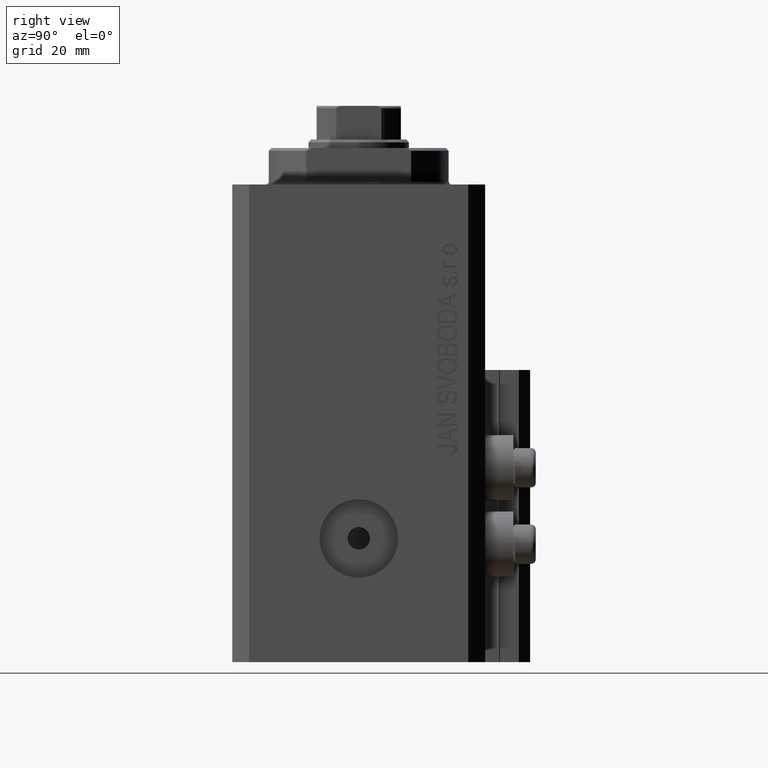
[diagram: clean part render]
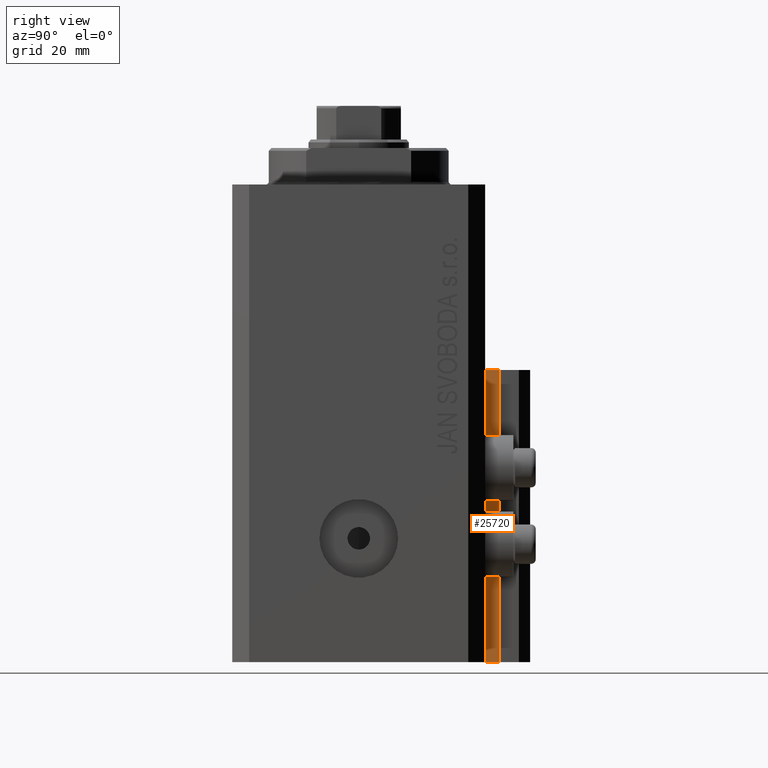
[diagram: same view with one face highlighted and labeled with its STEP entity id]
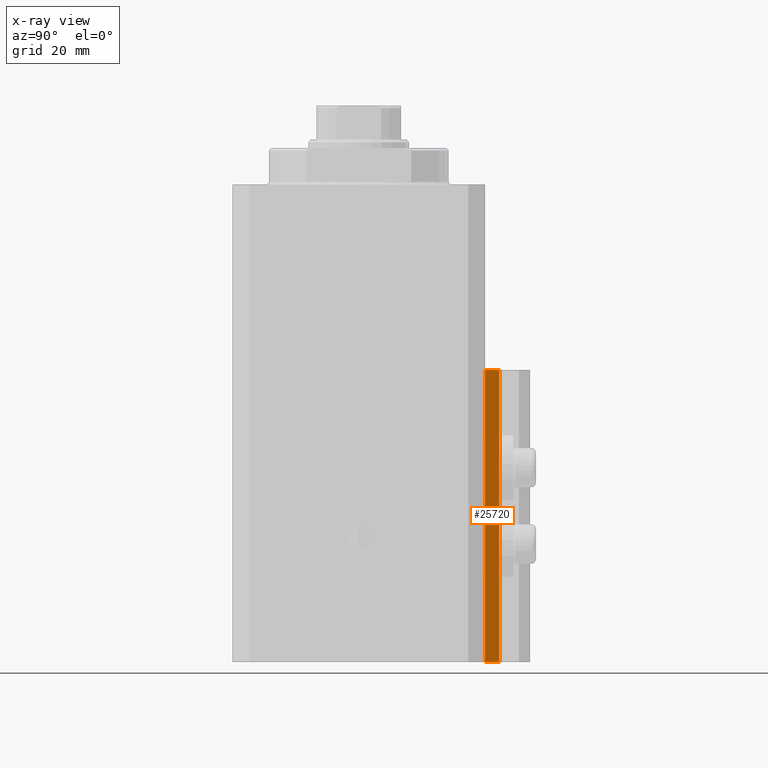
[diagram: x-ray of the same camera — body ghosted, the highlighted face saturated]
A machine part, right view. The second image highlights one B-rep face of the part: STEP entity #25720.
The next image is the same camera in x-ray: the body ghosted, the highlighted face saturated — about 0% of this face is hidden behind the body in this view.
In plain terms, the highlighted planar face has unit normal (1, -0, 0).
Its self-contained STEP definition (entity closure, byte-faithful):
#1549 = EDGE_CURVE ( 'NONE', #12872, #11153, #39842, .T. ) ;
#2373 = AXIS2_PLACEMENT_3D ( 'NONE', #35654, #31819, #13590 ) ;
#2645 = ORIENTED_EDGE ( 'NONE', *, *, #1549, .T. ) ;
#3014 = FACE_OUTER_BOUND ( 'NONE', #38913, .T. ) ;
#3340 = VECTOR ( 'NONE', #40103, 1000.000000000000000 ) ;
#6099 = VERTEX_POINT ( 'NONE', #21390 ) ;
#6386 = EDGE_CURVE ( 'NONE', #6099, #12872, #37884, .T. ) ;
#7501 = ORIENTED_EDGE ( 'NONE', *, *, #6386, .T. ) ;
#10357 = CARTESIAN_POINT ( 'NONE',  ( 14.49999999999999822, 24.99999999999950617, -85.00000000000000000 ) ) ;
#11153 = VERTEX_POINT ( 'NONE', #21445 ) ;
#12211 = DIRECTION ( 'NONE',  ( 6.938893903907212600E-16, 1.000000000000000000, 0.000000000000000000 ) ) ;
#12872 = VERTEX_POINT ( 'NONE', #17914 ) ;
#13179 = DIRECTION ( 'NONE',  ( 6.938893903907212600E-16, 1.000000000000000000, 0.000000000000000000 ) ) ;
#13590 = DIRECTION ( 'NONE',  ( 6.938893903907212600E-16, 1.000000000000000000, 0.000000000000000000 ) ) ;
#17914 = CARTESIAN_POINT ( 'NONE',  ( 14.49999999999999822, 24.99999999999950617, -85.00000000000000000 ) ) ;
#19921 = LINE ( 'NONE', #34777, #43028 ) ;
#21210 = LINE ( 'NONE', #28867, #3340 ) ;
#21390 = CARTESIAN_POINT ( 'NONE',  ( 14.49999999999999645, 22.49999999999949907, -85.00000000000000000 ) ) ;
#21445 = CARTESIAN_POINT ( 'NONE',  ( 14.49999999999999822, 24.99999999999950617, -33.00000000000000000 ) ) ;
#24175 = CARTESIAN_POINT ( 'NONE',  ( 14.49999999999999645, 22.49999999999949907, -33.00000000000000000 ) ) ;
#25720 = ADVANCED_FACE ( 'NONE', ( #3014 ), #27769, .T. ) ;
#26855 = EDGE_CURVE ( 'NONE', #32811, #11153, #19921, .T. ) ;
#27769 = PLANE ( 'NONE',  #2373 ) ;
#28867 = CARTESIAN_POINT ( 'NONE',  ( 14.49999999999999645, 22.49999999999949907, -85.00000000000000000 ) ) ;
#31819 = DIRECTION ( 'NONE',  ( 1.000000000000000000, -6.938893903907212600E-16, 0.000000000000000000 ) ) ;
#32811 = VERTEX_POINT ( 'NONE', #24175 ) ;
#34777 = CARTESIAN_POINT ( 'NONE',  ( 14.49999999999999645, 22.49999999999949907, -33.00000000000000000 ) ) ;
#35654 = CARTESIAN_POINT ( 'NONE',  ( 14.49999999999999645, 22.49999999999949907, -85.00000000000000000 ) ) ;
#37320 = EDGE_CURVE ( 'NONE', #6099, #32811, #21210, .T. ) ;
#37884 = LINE ( 'NONE', #42431, #45632 ) ;
#38913 = EDGE_LOOP ( 'NONE', ( #42503, #47276, #7501, #2645 ) ) ;
#39346 = VECTOR ( 'NONE', #43688, 1000.000000000000000 ) ;
#39842 = LINE ( 'NONE', #10357, #39346 ) ;
#40103 = DIRECTION ( 'NONE',  ( 0.000000000000000000, 0.000000000000000000, 1.000000000000000000 ) ) ;
#42431 = CARTESIAN_POINT ( 'NONE',  ( 14.49999999999999645, 22.49999999999949907, -85.00000000000000000 ) ) ;
#42503 = ORIENTED_EDGE ( 'NONE', *, *, #26855, .F. ) ;
#43028 = VECTOR ( 'NONE', #13179, 1000.000000000000000 ) ;
#43688 = DIRECTION ( 'NONE',  ( 0.000000000000000000, 0.000000000000000000, 1.000000000000000000 ) ) ;
#45632 = VECTOR ( 'NONE', #12211, 1000.000000000000000 ) ;
#47276 = ORIENTED_EDGE ( 'NONE', *, *, #37320, .F. ) ;